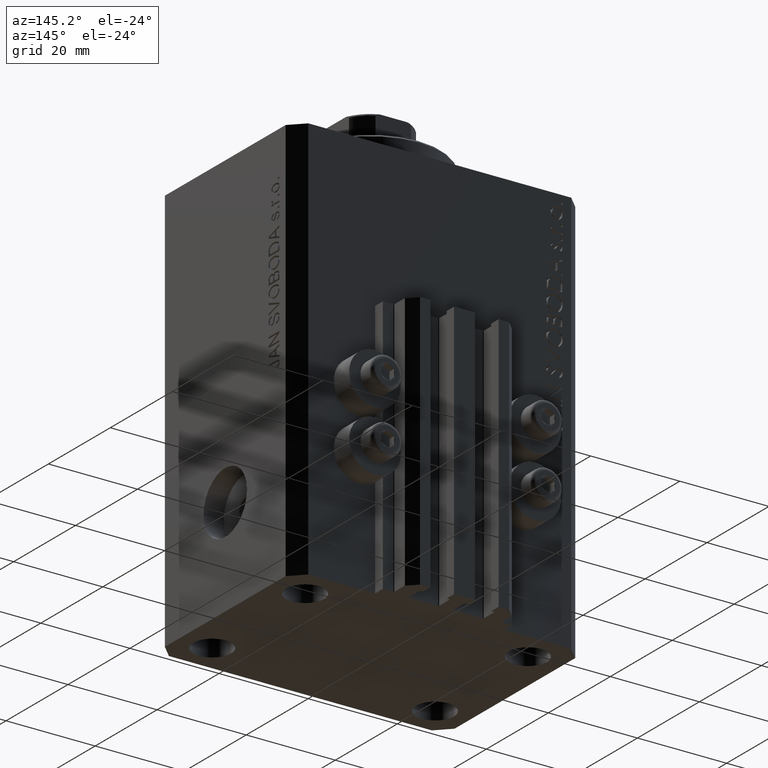
[diagram: clean part render]
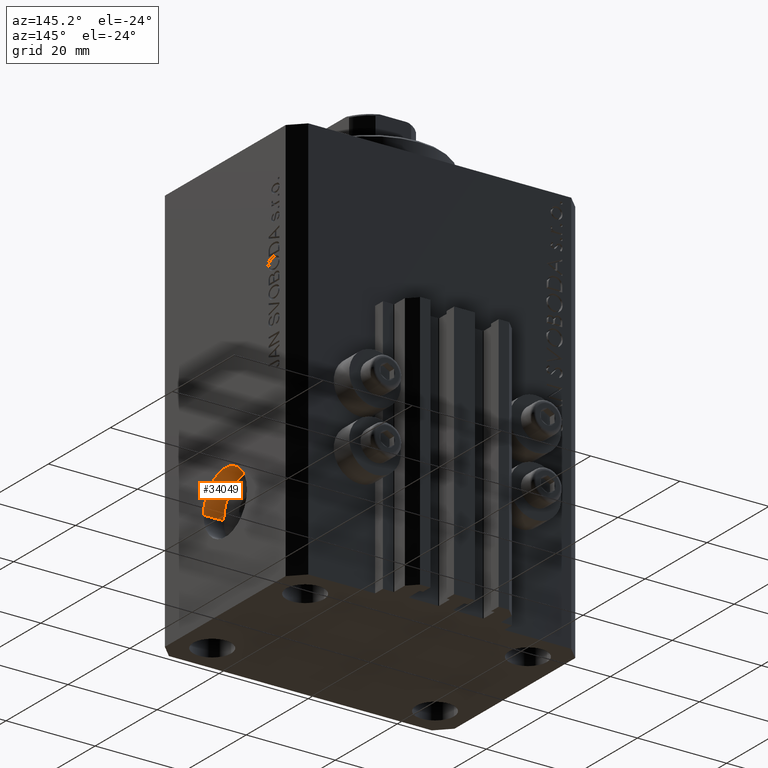
[diagram: same view with one face highlighted and labeled with its STEP entity id]
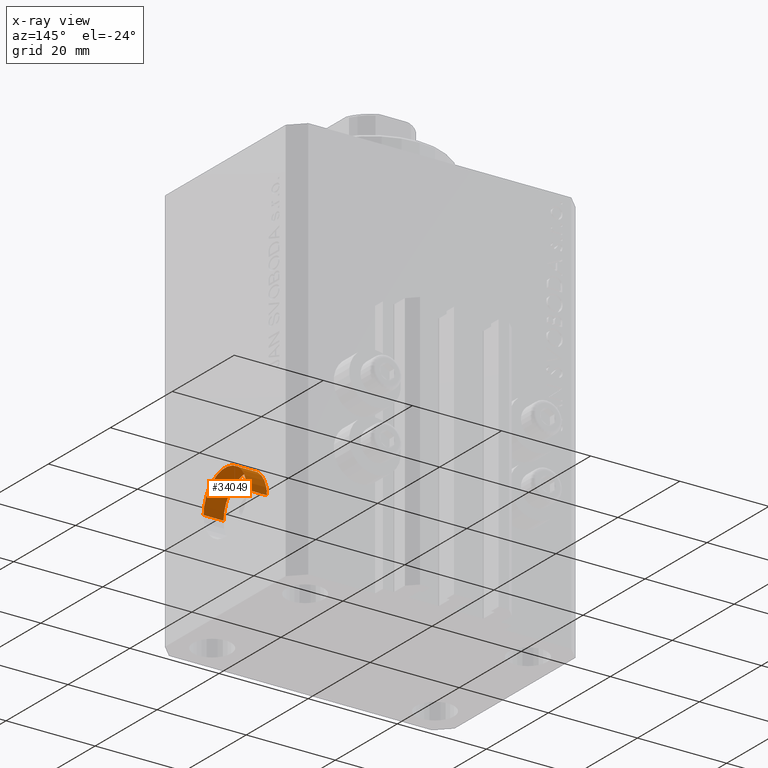
[diagram: x-ray of the same camera — body ghosted, the highlighted face saturated]
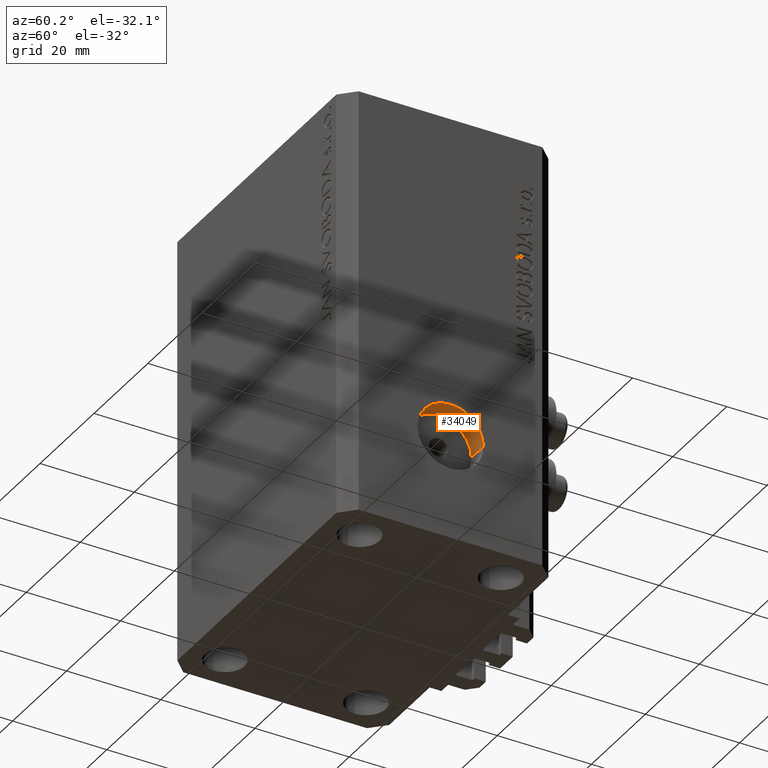
[diagram: same view with one face highlighted and labeled with its STEP entity id]
A machine part, auxiliary view. The second image highlights one B-rep face of the part: STEP entity #34049.
The next image is the same camera in x-ray: the body ghosted, the highlighted face saturated — about 0% of this face is hidden behind the body in this view.
A second angle (auxiliary view) of the same face is appended — the face is thin or edge-on in the first view.
In plain terms, the highlighted cylindrical surface (partial cylindrical patch) has radius 7 mm, axis along (1, -0, 0).
Its self-contained STEP definition (entity closure, byte-faithful):
#4525 = DIRECTION ( 'NONE',  ( 1.000000000000000000, -1.334402673828348976E-14, -0.000000000000000000 ) ) ;
#6411 = EDGE_CURVE ( 'NONE', #21314, #40070, #41247, .T. ) ;
#8193 = CARTESIAN_POINT ( 'NONE',  ( 27.99999999999677414, 4.270088556253899177E-14, -69.00000000000000000 ) ) ;
#8431 = DIRECTION ( 'NONE',  ( 1.338215252896394112E-14, 1.000000000000000000, 0.000000000000000000 ) ) ;
#9519 = CARTESIAN_POINT ( 'NONE',  ( 32.49999999999677414, -1.734723475973671215E-14, -69.00000000000000000 ) ) ;
#9812 = AXIS2_PLACEMENT_3D ( 'NONE', #8193, #18914, #8431 ) ;
#10616 = DIRECTION ( 'NONE',  ( 1.338215252896394112E-14, 1.000000000000000000, 0.000000000000000000 ) ) ;
#11071 = DIRECTION ( 'NONE',  ( 1.000000000000000000, -1.334402673828348976E-14, -0.000000000000000000 ) ) ;
#11220 = CARTESIAN_POINT ( 'NONE',  ( 27.99999999999668177, -6.999999999999957367, -69.00000000000000000 ) ) ;
#11800 = EDGE_CURVE ( 'NONE', #42003, #26996, #15802, .T. ) ;
#12806 = EDGE_CURVE ( 'NONE', #42003, #21314, #30351, .T. ) ;
#13454 = CARTESIAN_POINT ( 'NONE',  ( 32.49999999999686651, 6.999999999999983125, -69.00000000000000000 ) ) ;
#13828 = DIRECTION ( 'NONE',  ( 1.000000000000000000, -1.334402673828349134E-14, 0.000000000000000000 ) ) ;
#14862 = CYLINDRICAL_SURFACE ( 'NONE', #16280, 7.000000000000000000 ) ;
#15802 = LINE ( 'NONE', #30347, #28830 ) ;
#16280 = AXIS2_PLACEMENT_3D ( 'NONE', #36347, #11071, #10616 ) ;
#18914 = DIRECTION ( 'NONE',  ( 1.000000000000000000, -1.334402673828349134E-14, 0.000000000000000000 ) ) ;
#19998 = AXIS2_PLACEMENT_3D ( 'NONE', #9519, #13828, #31707 ) ;
#21314 = VERTEX_POINT ( 'NONE', #34090 ) ;
#22099 = CARTESIAN_POINT ( 'NONE',  ( 27.99999999999686651, 7.000000000000042633, -69.00000000000000000 ) ) ;
#25151 = EDGE_LOOP ( 'NONE', ( #31155, #33427, #28097, #31634 ) ) ;
#26996 = VERTEX_POINT ( 'NONE', #13454 ) ;
#28097 = ORIENTED_EDGE ( 'NONE', *, *, #11800, .T. ) ;
#28830 = VECTOR ( 'NONE', #44905, 1000.000000000000000 ) ;
#30347 = CARTESIAN_POINT ( 'NONE',  ( 27.99999999999686651, 7.000000000000042633, -69.00000000000000000 ) ) ;
#30351 = CIRCLE ( 'NONE', #9812, 7.000000000000000000 ) ;
#31155 = ORIENTED_EDGE ( 'NONE', *, *, #6411, .F. ) ;
#31634 = ORIENTED_EDGE ( 'NONE', *, *, #32373, .T. ) ;
#31707 = DIRECTION ( 'NONE',  ( 1.288651725011342390E-14, 1.000000000000000000, 0.000000000000000000 ) ) ;
#32373 = EDGE_CURVE ( 'NONE', #26996, #40070, #40592, .T. ) ;
#32538 = FACE_OUTER_BOUND ( 'NONE', #25151, .T. ) ;
#33427 = ORIENTED_EDGE ( 'NONE', *, *, #12806, .F. ) ;
#33507 = VECTOR ( 'NONE', #4525, 1000.000000000000000 ) ;
#34049 = ADVANCED_FACE ( 'NONE', ( #32538 ), #14862, .F. ) ;
#34090 = CARTESIAN_POINT ( 'NONE',  ( 27.99999999999668177, -6.999999999999957367, -69.00000000000000000 ) ) ;
#36347 = CARTESIAN_POINT ( 'NONE',  ( 27.99999999999677414, 4.270088556253899177E-14, -69.00000000000000000 ) ) ;
#40070 = VERTEX_POINT ( 'NONE', #42773 ) ;
#40592 = CIRCLE ( 'NONE', #19998, 7.000000000000000000 ) ;
#41247 = LINE ( 'NONE', #11220, #33507 ) ;
#42003 = VERTEX_POINT ( 'NONE', #22099 ) ;
#42773 = CARTESIAN_POINT ( 'NONE',  ( 32.49999999999668177, -7.000000000000018652, -69.00000000000000000 ) ) ;
#44905 = DIRECTION ( 'NONE',  ( 1.000000000000000000, -1.334402673828348976E-14, -0.000000000000000000 ) ) ;